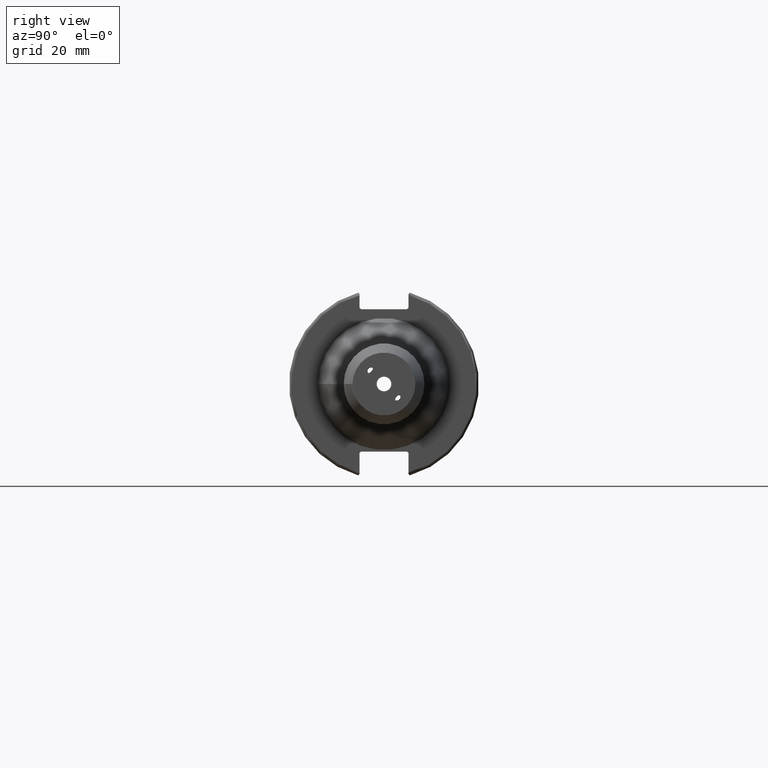
[diagram: clean part render]
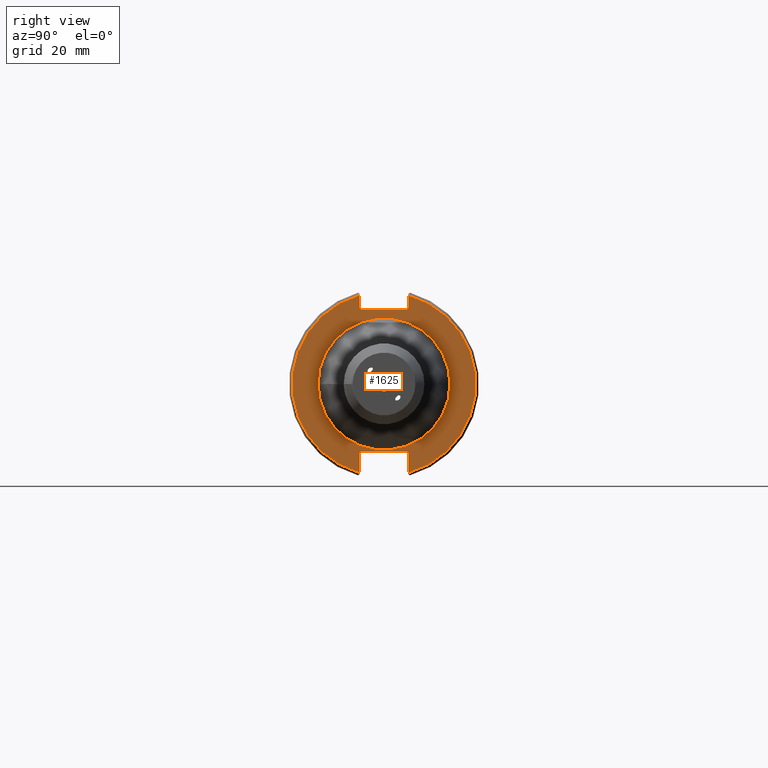
[diagram: same view with one face highlighted and labeled with its STEP entity id]
A machine part, right view. The second image highlights one B-rep face of the part: STEP entity #1625.
In plain terms, the highlighted planar face has unit normal (1, 0, 0).
Its self-contained STEP definition (entity closure, byte-faithful):
#51=FACE_BOUND('',#318,.T.);
#209=FACE_OUTER_BOUND('',#317,.T.);
#317=EDGE_LOOP('',(#1323,#1324,#1325,#1326,#1327,#1328,#1329,#1330,#1331,
#1332,#1333,#1334));
#318=EDGE_LOOP('',(#1335));
#373=CIRCLE('',#1716,22.0659638751108);
#411=CIRCLE('',#1811,30.75);
#413=CIRCLE('',#1816,30.75);
#494=LINE('',#2909,#597);
#497=LINE('',#2924,#600);
#498=LINE('',#2926,#601);
#499=LINE('',#2928,#602);
#500=LINE('',#2930,#603);
#501=LINE('',#2932,#604);
#502=LINE('',#2936,#605);
#503=LINE('',#2938,#606);
#504=LINE('',#2940,#607);
#505=LINE('',#2941,#608);
#597=VECTOR('',#2191,10.);
#600=VECTOR('',#2196,10.);
#601=VECTOR('',#2197,10.);
#602=VECTOR('',#2198,10.);
#603=VECTOR('',#2199,10.);
#604=VECTOR('',#2200,10.);
#605=VECTOR('',#2203,10.);
#606=VECTOR('',#2204,10.);
#607=VECTOR('',#2205,10.);
#608=VECTOR('',#2206,10.);
#662=VERTEX_POINT('',#2493);
#750=VERTEX_POINT('',#2864);
#751=VERTEX_POINT('',#2871);
#757=VERTEX_POINT('',#2908);
#759=VERTEX_POINT('',#2923);
#760=VERTEX_POINT('',#2925);
#761=VERTEX_POINT('',#2927);
#762=VERTEX_POINT('',#2929);
#763=VERTEX_POINT('',#2931);
#764=VERTEX_POINT('',#2933);
#765=VERTEX_POINT('',#2935);
#766=VERTEX_POINT('',#2937);
#767=VERTEX_POINT('',#2939);
#832=EDGE_CURVE('',#662,#662,#373,.T.);
#952=EDGE_CURVE('',#750,#751,#411,.T.);
#960=EDGE_CURVE('',#757,#751,#494,.T.);
#965=EDGE_CURVE('',#750,#759,#497,.T.);
#966=EDGE_CURVE('',#760,#759,#498,.T.);
#967=EDGE_CURVE('',#760,#761,#499,.T.);
#968=EDGE_CURVE('',#762,#761,#500,.T.);
#969=EDGE_CURVE('',#762,#763,#501,.T.);
#970=EDGE_CURVE('',#764,#763,#413,.T.);
#971=EDGE_CURVE('',#764,#765,#502,.T.);
#972=EDGE_CURVE('',#766,#765,#503,.T.);
#973=EDGE_CURVE('',#766,#767,#504,.T.);
#974=EDGE_CURVE('',#757,#767,#505,.T.);
#1323=ORIENTED_EDGE('',*,*,#952,.F.);
#1324=ORIENTED_EDGE('',*,*,#965,.T.);
#1325=ORIENTED_EDGE('',*,*,#966,.F.);
#1326=ORIENTED_EDGE('',*,*,#967,.T.);
#1327=ORIENTED_EDGE('',*,*,#968,.F.);
#1328=ORIENTED_EDGE('',*,*,#969,.T.);
#1329=ORIENTED_EDGE('',*,*,#970,.F.);
#1330=ORIENTED_EDGE('',*,*,#971,.T.);
#1331=ORIENTED_EDGE('',*,*,#972,.F.);
#1332=ORIENTED_EDGE('',*,*,#973,.T.);
#1333=ORIENTED_EDGE('',*,*,#974,.F.);
#1334=ORIENTED_EDGE('',*,*,#960,.T.);
#1335=ORIENTED_EDGE('',*,*,#832,.T.);
#1549=PLANE('',#1815);
#1625=ADVANCED_FACE('',(#209,#51),#1549,.T.);
#1716=AXIS2_PLACEMENT_3D('',#2495,#1946,#1947);
#1811=AXIS2_PLACEMENT_3D('',#2872,#2181,#2182);
#1815=AXIS2_PLACEMENT_3D('',#2922,#2194,#2195);
#1816=AXIS2_PLACEMENT_3D('',#2934,#2201,#2202);
#1946=DIRECTION('center_axis',(-1.,0.,0.));
#1947=DIRECTION('ref_axis',(0.,1.,0.));
#2181=DIRECTION('center_axis',(-1.,0.,0.));
#2182=DIRECTION('ref_axis',(0.,1.,-6.12323399573677E-17));
#2191=DIRECTION('',(0.,0.,-1.));
#2194=DIRECTION('center_axis',(1.,0.,0.));
#2195=DIRECTION('ref_axis',(0.,0.,-1.));
#2196=DIRECTION('',(0.,0.,-1.));
#2197=DIRECTION('',(0.,0.707106781186549,0.707106781186546));
#2198=DIRECTION('',(0.,-1.,0.));
#2199=DIRECTION('',(0.,0.70710678118655,-0.707106781186545));
#2200=DIRECTION('',(0.,0.,1.));
#2201=DIRECTION('center_axis',(-1.,0.,0.));
#2202=DIRECTION('ref_axis',(0.,-1.,1.60812264967664E-16));
#2203=DIRECTION('',(0.,0.,1.));
#2204=DIRECTION('',(0.,-0.707106781186549,-0.707106781186546));
#2205=DIRECTION('',(0.,1.,0.));
#2206=DIRECTION('',(0.,-0.707106781186549,0.707106781186546));
#2493=CARTESIAN_POINT('',(19.05,-22.0659638751108,-2.70230120297555E-15));
#2495=CARTESIAN_POINT('Origin',(19.05,0.,0.));
#2864=CARTESIAN_POINT('',(19.05,8.19,29.6392712461019));
#2871=CARTESIAN_POINT('',(19.05,8.19,-29.6392712461019));
#2872=CARTESIAN_POINT('Origin',(19.05,0.,0.));
#2908=CARTESIAN_POINT('',(19.05,8.19,-23.1));
#2909=CARTESIAN_POINT('',(19.05,8.19,-11.3));
#2922=CARTESIAN_POINT('Origin',(19.05,0.,0.));
#2923=CARTESIAN_POINT('',(19.05,8.19,25.5));
#2924=CARTESIAN_POINT('',(19.05,8.19,12.5));
#2925=CARTESIAN_POINT('',(19.05,7.69,25.));
#2926=CARTESIAN_POINT('',(19.05,-0.35750000000001,16.9525));
#2927=CARTESIAN_POINT('',(19.05,-7.69,25.));
#2928=CARTESIAN_POINT('',(19.05,0.,25.));
#2929=CARTESIAN_POINT('',(19.05,-8.19,25.5));
#2930=CARTESIAN_POINT('',(19.05,0.357500000000014,16.9525));
#2931=CARTESIAN_POINT('',(19.05,-8.19,29.6392712461019));
#2932=CARTESIAN_POINT('',(19.05,-8.19,12.5));
#2933=CARTESIAN_POINT('',(19.05,-8.19,-29.6392712461019));
#2934=CARTESIAN_POINT('Origin',(19.05,0.,0.));
#2935=CARTESIAN_POINT('',(19.05,-8.19,-23.1));
#2936=CARTESIAN_POINT('',(19.05,-8.19,-11.3));
#2937=CARTESIAN_POINT('',(19.05,-7.69,-22.6));
#2938=CARTESIAN_POINT('',(19.05,-0.242499999999991,-15.1525));
#2939=CARTESIAN_POINT('',(19.05,7.69,-22.6));
#2940=CARTESIAN_POINT('',(19.05,-2.77555756156289E-16,-22.6));
#2941=CARTESIAN_POINT('',(19.05,0.242499999999989,-15.1525));